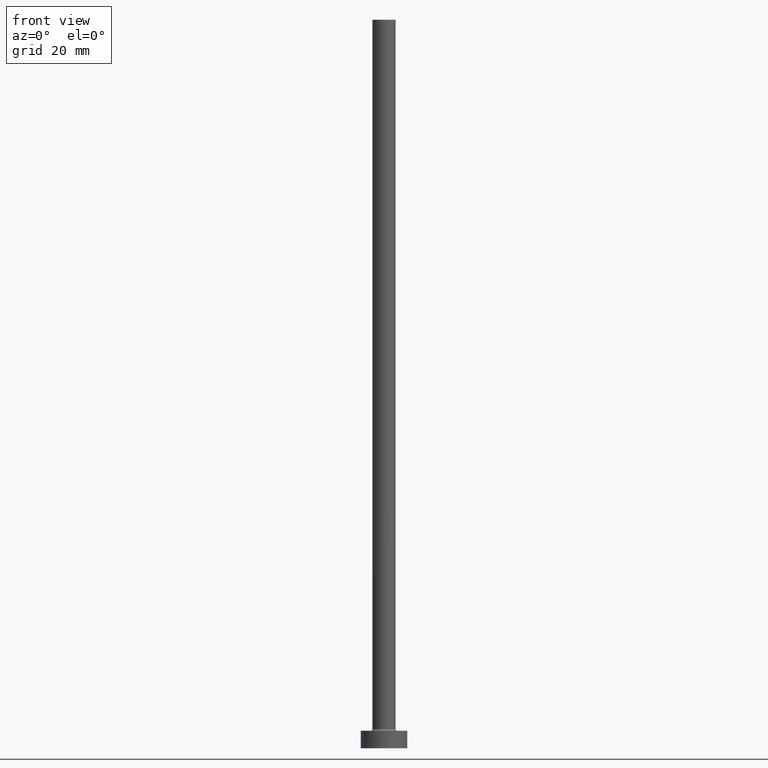
[diagram: clean part render]
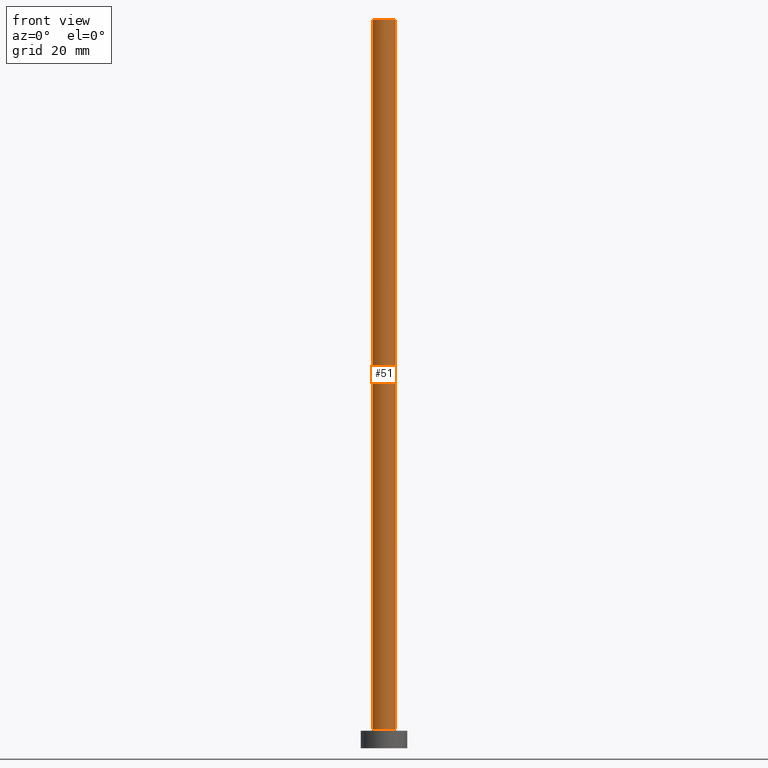
[diagram: same view with one face highlighted and labeled with its STEP entity id]
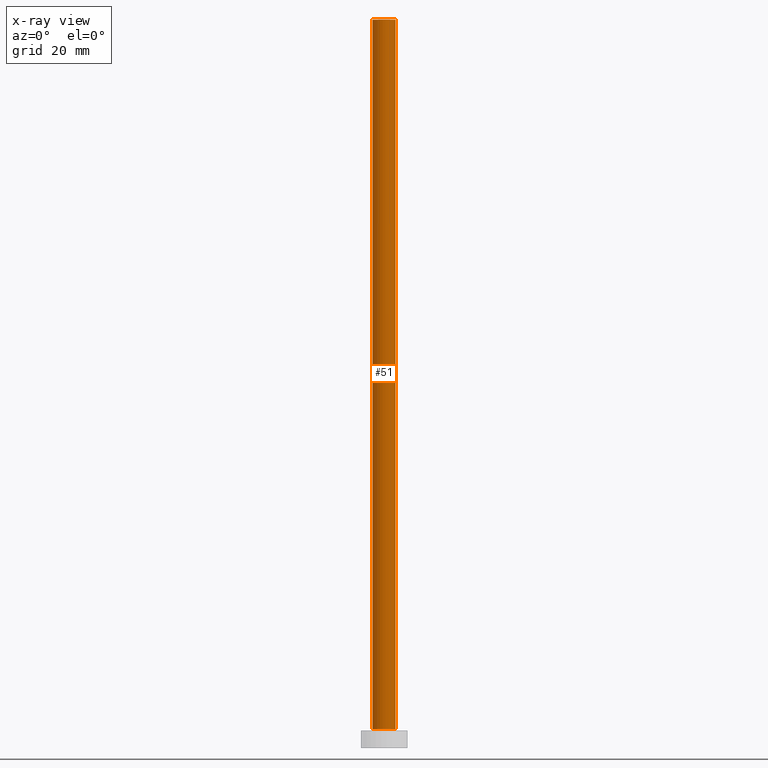
[diagram: x-ray of the same camera — body ghosted, the highlighted face saturated]
A machine part, front view. The second image highlights one B-rep face of the part: STEP entity #51.
The next image is the same camera in x-ray: the body ghosted, the highlighted face saturated — about 0% of this face is hidden behind the body in this view.
In plain terms, the highlighted cylindrical surface (edge-blend (fillet) strip) has radius 2 mm, axis along (-0, -0, -1).
Its self-contained STEP definition (entity closure, byte-faithful):
#11 = CIRCLE ( 'NONE', #269, 2.000000000000000000 ) ;
#51 = ADVANCED_FACE ( 'NONE', ( #421 ), #376, .T. ) ;
#74 = CIRCLE ( 'NONE', #169, 2.000000000000000000 ) ;
#81 = CARTESIAN_POINT ( 'NONE',  ( 2.000000000000000000, 2.449293598294705921E-16, 125.0000000000000000 ) ) ;
#87 = VERTEX_POINT ( 'NONE', #81 ) ;
#94 = LINE ( 'NONE', #454, #333 ) ;
#104 = DIRECTION ( 'NONE',  ( 1.000000000000000000, 0.000000000000000000, 0.000000000000000000 ) ) ;
#119 = CARTESIAN_POINT ( 'NONE',  ( 0.000000000000000000, 0.000000000000000000, 3.299999999999997158 ) ) ;
#121 = CARTESIAN_POINT ( 'NONE',  ( 2.000000000000000000, 2.449293598294705921E-16, 125.0000000000000000 ) ) ;
#134 = DIRECTION ( 'NONE',  ( -0.000000000000000000, -0.000000000000000000, -1.000000000000000000 ) ) ;
#150 = AXIS2_PLACEMENT_3D ( 'NONE', #381, #310, #196 ) ;
#169 = AXIS2_PLACEMENT_3D ( 'NONE', #358, #171, #104 ) ;
#171 = DIRECTION ( 'NONE',  ( 0.000000000000000000, 0.000000000000000000, 1.000000000000000000 ) ) ;
#175 = VECTOR ( 'NONE', #404, 1000.000000000000000 ) ;
#177 = VERTEX_POINT ( 'NONE', #394 ) ;
#189 = ORIENTED_EDGE ( 'NONE', *, *, #425, .T. ) ;
#196 = DIRECTION ( 'NONE',  ( -1.000000000000000000, 0.000000000000000000, 0.000000000000000000 ) ) ;
#197 = EDGE_CURVE ( 'NONE', #267, #177, #94, .T. ) ;
#233 = ORIENTED_EDGE ( 'NONE', *, *, #197, .T. ) ;
#243 = LINE ( 'NONE', #121, #175 ) ;
#261 = DIRECTION ( 'NONE',  ( 1.000000000000000000, 0.000000000000000000, 0.000000000000000000 ) ) ;
#267 = VERTEX_POINT ( 'NONE', #316 ) ;
#269 = AXIS2_PLACEMENT_3D ( 'NONE', #119, #342, #261 ) ;
#275 = EDGE_CURVE ( 'NONE', #87, #449, #243, .T. ) ;
#289 = ORIENTED_EDGE ( 'NONE', *, *, #275, .F. ) ;
#310 = DIRECTION ( 'NONE',  ( -0.000000000000000000, -0.000000000000000000, -1.000000000000000000 ) ) ;
#314 = EDGE_LOOP ( 'NONE', ( #289, #411, #233, #189 ) ) ;
#316 = CARTESIAN_POINT ( 'NONE',  ( -2.000000000000000000, 0.000000000000000000, 125.0000000000000000 ) ) ;
#333 = VECTOR ( 'NONE', #134, 1000.000000000000000 ) ;
#342 = DIRECTION ( 'NONE',  ( 0.000000000000000000, 0.000000000000000000, 1.000000000000000000 ) ) ;
#358 = CARTESIAN_POINT ( 'NONE',  ( 0.000000000000000000, 0.000000000000000000, 125.0000000000000000 ) ) ;
#376 = CYLINDRICAL_SURFACE ( 'NONE', #150, 2.000000000000000000 ) ;
#377 = EDGE_CURVE ( 'NONE', #267, #87, #74, .T. ) ;
#381 = CARTESIAN_POINT ( 'NONE',  ( 0.000000000000000000, 0.000000000000000000, 125.0000000000000000 ) ) ;
#394 = CARTESIAN_POINT ( 'NONE',  ( -2.000000000000000000, 0.000000000000000000, 3.299999999999997158 ) ) ;
#404 = DIRECTION ( 'NONE',  ( -0.000000000000000000, -0.000000000000000000, -1.000000000000000000 ) ) ;
#411 = ORIENTED_EDGE ( 'NONE', *, *, #377, .F. ) ;
#418 = CARTESIAN_POINT ( 'NONE',  ( 2.000000000000000000, 2.449293598294705921E-16, 3.299999999999997158 ) ) ;
#421 = FACE_OUTER_BOUND ( 'NONE', #314, .T. ) ;
#425 = EDGE_CURVE ( 'NONE', #177, #449, #11, .T. ) ;
#449 = VERTEX_POINT ( 'NONE', #418 ) ;
#454 = CARTESIAN_POINT ( 'NONE',  ( -2.000000000000000000, 0.000000000000000000, 125.0000000000000000 ) ) ;